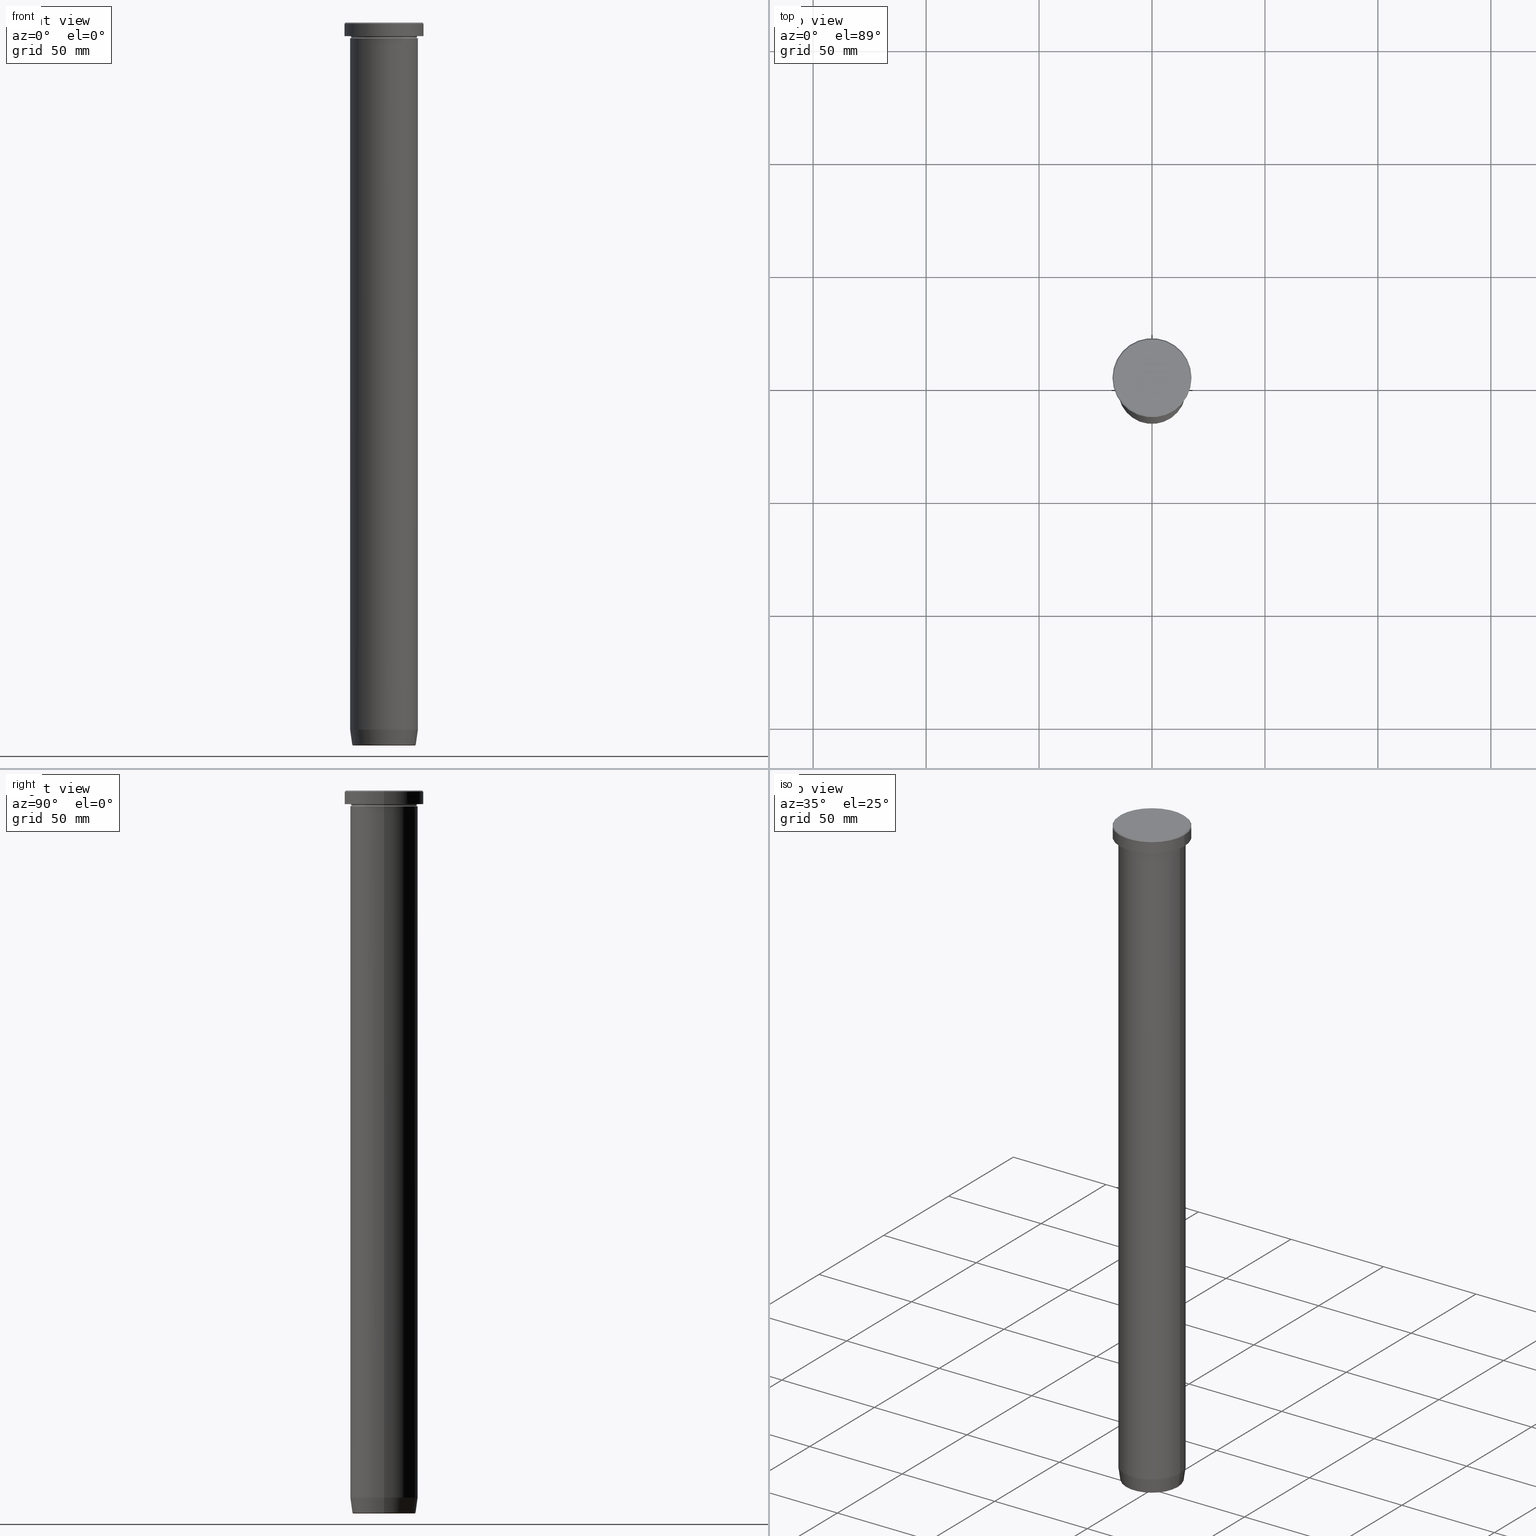
[diagram: canonical four-view strip — front | top / right | iso, engineering-drawing reading convention]
A machine part, canonical four-view strip (front | top / right | iso — engineering-drawing reading convention). The complete STEP part file that produces these views, byte-faithful:
ISO-10303-21;
HEADER;
FILE_DESCRIPTION (( 'STEP AP203' ),
    '1' );
FILE_NAME ('a3d0.STEP',
    '2024-01-02T17:49:03',
    ( '' ),
    ( '' ),
    'SwSTEP 2.0',
    'SolidWorks 2019',
    '' );
FILE_SCHEMA (( 'CONFIG_CONTROL_DESIGN' ));
ENDSEC;

DATA;
#1 = AXIS2_PLACEMENT_3D ( 'NONE', #470, #156, #508 ) ;
#2 = DIRECTION ( 'NONE',  ( -0.000000000000000000, -0.000000000000000000, 1.000000000000000000 ) ) ;
#3 = DIRECTION ( 'NONE',  ( -0.000000000000000000, -0.000000000000000000, 1.000000000000000000 ) ) ;
#4 = CARTESIAN_POINT ( 'NONE',  ( 0.000000000000000000, 0.000000000000000000, 0.000000000000000000 ) ) ;
#5 = ORIENTED_EDGE ( 'NONE', *, *, #241, .T. ) ;
#6 = AXIS2_PLACEMENT_3D ( 'NONE', #299, #26, #212 ) ;
#7 = FACE_OUTER_BOUND ( 'NONE', #569, .T. ) ;
#8 = EDGE_CURVE ( 'NONE', #490, #484, #77, .T. ) ;
#9 = CARTESIAN_POINT ( 'NONE',  ( 0.000000000000000000, 0.000000000000000000, -319.4999999999999432 ) ) ;
#10 = CIRCLE ( 'NONE', #355, 13.58157078817513508 ) ;
#11 = LOCAL_TIME ( 18, 49, 3.000000000000000000, #536 ) ;
#12 = DIRECTION ( 'NONE',  ( 1.000000000000000000, 0.000000000000000000, 0.000000000000000000 ) ) ;
#13 = CARTESIAN_POINT ( 'NONE',  ( 0.000000000000000000, 0.000000000000000000, -319.9999999999999432 ) ) ;
#14 = DIRECTION ( 'NONE',  ( -0.000000000000000000, -0.000000000000000000, 1.000000000000000000 ) ) ;
#15 = COORDINATED_UNIVERSAL_TIME_OFFSET ( 1, 0, .AHEAD. ) ;
#16 = ORIENTED_EDGE ( 'NONE', *, *, #41, .T. ) ;
#17 = PLANE ( 'NONE',  #36 ) ;
#18 = DIRECTION ( 'NONE',  ( -0.000000000000000000, -0.000000000000000000, 1.000000000000000000 ) ) ;
#19 = ORIENTED_EDGE ( 'NONE', *, *, #41, .F. ) ;
#20 = EDGE_CURVE ( 'NONE', #490, #341, #309, .T. ) ;
#21 = UNCERTAINTY_MEASURE_WITH_UNIT (LENGTH_MEASURE( 1.000000000000000082E-05 ), #457, 'distance_accuracy_value', 'NONE');
#22 = CARTESIAN_POINT ( 'NONE',  ( 0.000000000000000000, 0.000000000000000000, -319.4999999999999432 ) ) ;
#23 = CIRCLE ( 'NONE', #243, 15.00000000000000000 ) ;
#24 = AXIS2_PLACEMENT_3D ( 'NONE', #467, #427, #159 ) ;
#25 = DIRECTION ( 'NONE',  ( -0.000000000000000000, -0.000000000000000000, 1.000000000000000000 ) ) ;
#26 = DIRECTION ( 'NONE',  ( -0.000000000000000000, -0.000000000000000000, 1.000000000000000000 ) ) ;
#27 = CARTESIAN_POINT ( 'NONE',  ( 0.000000000000000000, 0.000000000000000000, 0.000000000000000000 ) ) ;
#28 = EDGE_CURVE ( 'NONE', #579, #341, #481, .T. ) ;
#29 = CARTESIAN_POINT ( 'NONE',  ( -13.58157078817513508, 1.693580934830242487E-15, -319.9999999999999432 ) ) ;
#30 = ORIENTED_EDGE ( 'NONE', *, *, #43, .T. ) ;
#31 = ORIENTED_EDGE ( 'NONE', *, *, #241, .F. ) ;
#32 = VERTEX_POINT ( 'NONE', #537 ) ;
#33 = DIRECTION ( 'NONE',  ( -1.000000000000000000, 0.000000000000000000, 0.000000000000000000 ) ) ;
#34 = ORIENTED_EDGE ( 'NONE', *, *, #387, .T. ) ;
#35 = CONICAL_SURFACE ( 'NONE', #109, 17.00000000000000000, 0.7853981633974415066 ) ;
#36 = AXIS2_PLACEMENT_3D ( 'NONE', #389, #132, #270 ) ;
#37 = APPLICATION_PROTOCOL_DEFINITION ( 'international standard', 'config_control_design', 1994, #75 ) ;
#38 = VERTEX_POINT ( 'NONE', #72 ) ;
#39 = CARTESIAN_POINT ( 'NONE',  ( 0.000000000000000000, 0.000000000000000000, -319.9999999999999432 ) ) ;
#40 = LINE ( 'NONE', #320, #163 ) ;
#41 = EDGE_CURVE ( 'NONE', #484, #490, #160, .T. ) ;
#42 = AXIS2_PLACEMENT_3D ( 'NONE', #81, #183, #271 ) ;
#43 = EDGE_CURVE ( 'NONE', #471, #236, #209, .T. ) ;
#44 = DATE_TIME_ROLE ( 'creation_date' ) ;
#45 = DIRECTION ( 'NONE',  ( 0.000000000000000000, 0.000000000000000000, -1.000000000000000000 ) ) ;
#46 = AXIS2_PLACEMENT_3D ( 'NONE', #121, #546, #127 ) ;
#47 = CIRCLE ( 'NONE', #393, 14.49999999999999822 ) ;
#48 = AXIS2_PLACEMENT_3D ( 'NONE', #462, #242, #554 ) ;
#49 = CARTESIAN_POINT ( 'NONE',  ( 0.000000000000000000, 2.939152317953646711E-14, -319.9999999999999432 ) ) ;
#50 = CARTESIAN_POINT ( 'NONE',  ( -14.07670482254592592, 1.780434674534163799E-15, -319.5695865504799826 ) ) ;
#51 = ORIENTED_EDGE ( 'NONE', *, *, #361, .F. ) ;
#52 = CARTESIAN_POINT ( 'NONE',  ( -14.01621415708325280, 1.716491180363582438E-15, -319.9999999999999432 ) ) ;
#53 = CARTESIAN_POINT ( 'NONE',  ( 14.07670482254592592, 0.000000000000000000, -319.5695865504799826 ) ) ;
#54 = ORIENTED_EDGE ( 'NONE', *, *, #599, .F. ) ;
#55 = DIRECTION ( 'NONE',  ( -0.000000000000000000, -0.000000000000000000, 1.000000000000000000 ) ) ;
#56 = CC_DESIGN_DATE_AND_TIME_ASSIGNMENT ( #493, #44, ( #168 ) ) ;
#57 = CYLINDRICAL_SURFACE ( 'NONE', #592, 17.50000000000000000 ) ;
#58 = ORIENTED_EDGE ( 'NONE', *, *, #8, .T. ) ;
#59 = AXIS2_PLACEMENT_3D ( 'NONE', #208, #165, #300 ) ;
#60 = ORGANIZATION ( 'NEUR�EN�', 'NEUR�EN�', '' ) ;
#61 = CARTESIAN_POINT ( 'NONE',  ( 0.000000000000000000, 0.000000000000000000, 0.000000000000000000 ) ) ;
#62 = EDGE_CURVE ( 'NONE', #476, #471, #449, .T. ) ;
#63 = ORIENTED_EDGE ( 'NONE', *, *, #419, .F. ) ;
#64 = CARTESIAN_POINT ( 'NONE',  ( -17.50000000000000000, 2.143131898507868248E-15, 0.000000000000000000 ) ) ;
#65 = CARTESIAN_POINT ( 'NONE',  ( 15.00000000000000000, 0.000000000000000000, 0.000000000000000000 ) ) ;
#66 = LOCAL_TIME ( 18, 49, 3.000000000000000000, #555 ) ;
#67 = ORIENTED_EDGE ( 'NONE', *, *, #43, .F. ) ;
#68 = ORIENTED_EDGE ( 'NONE', *, *, #224, .F. ) ;
#69 = CARTESIAN_POINT ( 'NONE',  ( -17.50000000000000000, 2.143131898507868248E-15, -5.999999999999999112 ) ) ;
#70 = EDGE_CURVE ( 'NONE', #32, #204, #597, .T. ) ;
#71 = ORIENTED_EDGE ( 'NONE', *, *, #497, .F. ) ;
#72 = CARTESIAN_POINT ( 'NONE',  ( -15.00000000000000000, 1.836970198721029589E-15, -6.999999999999999112 ) ) ;
#73 = PLANE ( 'NONE',  #384 ) ;
#74 = APPROVAL ( #88, 'NEUR�EN�' ) ;
#75 = APPLICATION_CONTEXT ( 'configuration controlled 3d designs of mechanical parts and assemblies' ) ;
#76 = DIRECTION ( 'NONE',  ( -0.000000000000000000, -0.000000000000000000, 1.000000000000000000 ) ) ;
#77 = CIRCLE ( 'NONE', #6, 17.00000000000000000 ) ;
#78 = ORIENTED_EDGE ( 'NONE', *, *, #219, .T. ) ;
#79 = VERTEX_POINT ( 'NONE', #92 ) ;
#80 = AXIS2_PLACEMENT_3D ( 'NONE', #358, #399, #538 ) ;
#81 = CARTESIAN_POINT ( 'NONE',  ( 0.000000000000000000, 0.000000000000000000, 0.000000000000000000 ) ) ;
#82 = AXIS2_PLACEMENT_3D ( 'NONE', #95, #234, #332 ) ;
#83 = CARTESIAN_POINT ( 'NONE',  ( 0.000000000000000000, 0.000000000000000000, -36.00000000000000000 ) ) ;
#84 = ADVANCED_FACE ( 'NONE', ( #191 ), #205, .F. ) ;
#85 = PERSON_AND_ORGANIZATION_ROLE ( 'creator' ) ;
#86 = VECTOR ( 'NONE', #494, 1000.000000000000000 ) ;
#87 = CIRCLE ( 'NONE', #319, 13.58157078817513508 ) ;
#88 = APPROVAL_STATUS ( 'not_yet_approved' ) ;
#89 = LOCAL_TIME ( 18, 49, 3.000000000000000000, #418 ) ;
#90 = EDGE_CURVE ( 'NONE', #442, #293, #87, .T. ) ;
#91 = PERSON_AND_ORGANIZATION_ROLE ( 'classification_officer' ) ;
#92 = CARTESIAN_POINT ( 'NONE',  ( 17.50000000000000000, 0.000000000000000000, -0.5000000000000073275 ) ) ;
#93 = DATE_AND_TIME ( #551, #89 ) ;
#94 = FACE_OUTER_BOUND ( 'NONE', #258, .T. ) ;
#95 = CARTESIAN_POINT ( 'NONE',  ( 13.58157078817513508, 0.000000000000000000, -319.4999999999999432 ) ) ;
#96 = EDGE_LOOP ( 'NONE', ( #19, #491, #221, #217 ) ) ;
#97 = CALENDAR_DATE ( 2024, 2, 1 ) ;
#98 = CIRCLE ( 'NONE', #59, 17.50000000000000000 ) ;
#99 = AXIS2_PLACEMENT_3D ( 'NONE', #192, #373, #561 ) ;
#100 = DIRECTION ( 'NONE',  ( 1.000000000000000000, 0.000000000000000000, 0.000000000000000000 ) ) ;
#101 = CARTESIAN_POINT ( 'NONE',  ( 15.00000000000000000, 0.000000000000000000, 0.000000000000000000 ) ) ;
#102 = ORIENTED_EDGE ( 'NONE', *, *, #407, .F. ) ;
#103 = ADVANCED_FACE ( 'NONE', ( #292 ), #57, .T. ) ;
#104 = DIRECTION ( 'NONE',  ( -1.000000000000000000, -1.224646799147349509E-16, 0.000000000000000000 ) ) ;
#105 = EDGE_LOOP ( 'NONE', ( #436, #390 ) ) ;
#106 = CARTESIAN_POINT ( 'NONE',  ( 0.000000000000000000, 0.000000000000000000, -5.999999999999999112 ) ) ;
#107 = CARTESIAN_POINT ( 'NONE',  ( 15.00000000000000000, 0.000000000000000000, -36.00000000000000000 ) ) ;
#108 = EDGE_CURVE ( 'NONE', #236, #166, #273, .T. ) ;
#109 = AXIS2_PLACEMENT_3D ( 'NONE', #27, #485, #302 ) ;
#110 = CARTESIAN_POINT ( 'NONE',  ( -15.00000000000000000, 1.836970198721029589E-15, -312.9999999999999432 ) ) ;
#111 = DIRECTION ( 'NONE',  ( 1.000000000000000000, 0.000000000000000000, 0.000000000000000000 ) ) ;
#112 = CARTESIAN_POINT ( 'NONE',  ( 0.000000000000000000, 0.000000000000000000, -319.5695865504799826 ) ) ;
#113 = EDGE_LOOP ( 'NONE', ( #522, #479, #433, #54 ) ) ;
#114 = DIRECTION ( 'NONE',  ( -0.000000000000000000, -0.000000000000000000, 1.000000000000000000 ) ) ;
#115 = MANIFOLD_SOLID_BREP ( 'Zkosen�1', #364 ) ;
#116 = PERSON_AND_ORGANIZATION ( #430, #60 ) ;
#117 = AXIS2_PLACEMENT_3D ( 'NONE', #39, #2, #142 ) ;
#118 = EDGE_LOOP ( 'NONE', ( #369, #34, #392, #541 ) ) ;
#119 = DIRECTION ( 'NONE',  ( 1.000000000000000000, 0.000000000000000000, 0.000000000000000000 ) ) ;
#120 = VERTEX_POINT ( 'NONE', #287 ) ;
#121 = CARTESIAN_POINT ( 'NONE',  ( 0.000000000000000000, 0.000000000000000000, -5.999999999999999112 ) ) ;
#122 = ORIENTED_EDGE ( 'NONE', *, *, #125, .T. ) ;
#123 = ORIENTED_EDGE ( 'NONE', *, *, #564, .F. ) ;
#124 = CARTESIAN_POINT ( 'NONE',  ( 0.000000000000000000, 0.000000000000000000, -36.00000000000000000 ) ) ;
#125 = EDGE_CURVE ( 'NONE', #421, #250, #23, .T. ) ;
#126 = TOROIDAL_SURFACE ( 'NONE', #486, 13.58157078817513508, 0.5000000000000000000 ) ;
#127 = DIRECTION ( 'NONE',  ( -1.000000000000000000, 0.000000000000000000, 0.000000000000000000 ) ) ;
#128 = CIRCLE ( 'NONE', #82, 0.5000000000000004441 ) ;
#129 = APPROVAL_DATE_TIME ( #223, #274 ) ;
#130 = MECHANICAL_CONTEXT ( 'NONE', #202, 'mechanical' ) ;
#131 = PERSON_AND_ORGANIZATION ( #430, #60 ) ;
#132 = DIRECTION ( 'NONE',  ( 0.000000000000000000, 0.000000000000000000, -1.000000000000000000 ) ) ;
#133 = EDGE_CURVE ( 'NONE', #476, #166, #247, .T. ) ;
#134 = DIRECTION ( 'NONE',  ( 0.000000000000000000, 0.000000000000000000, 1.000000000000000000 ) ) ;
#135 = TOROIDAL_SURFACE ( 'NONE', #266, 15.00000000000000000, 0.5000000000000000000 ) ;
#136 = TOROIDAL_SURFACE ( 'NONE', #99, 15.00000000000000000, 0.5000000000000000000 ) ;
#137 = CARTESIAN_POINT ( 'NONE',  ( 15.00000000000000000, 1.836970198721029589E-15, -6.499999999999999112 ) ) ;
#138 = FACE_OUTER_BOUND ( 'NONE', #574, .T. ) ;
#139 = DIRECTION ( 'NONE',  ( -0.000000000000000000, -0.000000000000000000, 1.000000000000000000 ) ) ;
#140 = LINE ( 'NONE', #328, #511 ) ;
#141 = DIRECTION ( 'NONE',  ( 1.000000000000000000, 0.000000000000000000, 0.000000000000000000 ) ) ;
#142 = DIRECTION ( 'NONE',  ( 1.000000000000000000, 0.000000000000000000, 0.000000000000000000 ) ) ;
#143 = DIRECTION ( 'NONE',  ( -1.224646799147353207E-16, 1.000000000000000000, 0.000000000000000000 ) ) ;
#144 = ORIENTED_EDGE ( 'NONE', *, *, #595, .F. ) ;
#145 = SHAPE_DEFINITION_REPRESENTATION ( #472, #228 ) ;
#146 = DIRECTION ( 'NONE',  ( 1.000000000000000000, 0.000000000000000000, 0.000000000000000000 ) ) ;
#147 = CARTESIAN_POINT ( 'NONE',  ( 0.000000000000000000, 0.000000000000000000, -36.00000000000000000 ) ) ;
#148 = DIRECTION ( 'NONE',  ( 1.224646799147353207E-16, 1.000000000000000000, 0.000000000000000000 ) ) ;
#149 = EDGE_LOOP ( 'NONE', ( #201, #78, #123, #578 ) ) ;
#150 = VERTEX_POINT ( 'NONE', #520 ) ;
#151 = CIRCLE ( 'NONE', #585, 15.00000000000000000 ) ;
#152 = CIRCLE ( 'NONE', #1, 0.5000000000000004441 ) ;
#153 = DIRECTION ( 'NONE',  ( 1.000000000000000000, 0.000000000000000000, 0.000000000000000000 ) ) ;
#154 = DIRECTION ( 'NONE',  ( 0.000000000000000000, 0.000000000000000000, -1.000000000000000000 ) ) ;
#155 = DIRECTION ( 'NONE',  ( 1.000000000000000000, 0.000000000000000000, 0.000000000000000000 ) ) ;
#156 = DIRECTION ( 'NONE',  ( 1.224646799147353207E-16, 1.000000000000000000, 0.000000000000000000 ) ) ;
#157 = ORIENTED_EDGE ( 'NONE', *, *, #497, .T. ) ;
#158 = ORIENTED_EDGE ( 'NONE', *, *, #185, .F. ) ;
#159 = DIRECTION ( 'NONE',  ( 1.000000000000000000, 0.000000000000000000, 0.000000000000000000 ) ) ;
#160 = CIRCLE ( 'NONE', #495, 17.00000000000000000 ) ;
#161 = ORIENTED_EDGE ( 'NONE', *, *, #407, .T. ) ;
#162 = ORIENTED_EDGE ( 'NONE', *, *, #487, .F. ) ;
#163 = VECTOR ( 'NONE', #406, 1000.000000000000000 ) ;
#164 = DIRECTION ( 'NONE',  ( -0.000000000000000000, -0.000000000000000000, 1.000000000000000000 ) ) ;
#165 = DIRECTION ( 'NONE',  ( 0.000000000000000000, 0.000000000000000000, -1.000000000000000000 ) ) ;
#166 = VERTEX_POINT ( 'NONE', #110 ) ;
#167 = CARTESIAN_POINT ( 'NONE',  ( 15.00000000000000000, 0.000000000000000000, -36.00000000000000000 ) ) ;
#168 = PRODUCT_DEFINITION ( 'NEZN�M�', '', #412, #385 ) ;
#169 = DIRECTION ( 'NONE',  ( -0.000000000000000000, -0.000000000000000000, 1.000000000000000000 ) ) ;
#170 = DIRECTION ( 'NONE',  ( 0.000000000000000000, 0.000000000000000000, -1.000000000000000000 ) ) ;
#171 = AXIS2_PLACEMENT_3D ( 'NONE', #124, #170, #542 ) ;
#172 = VECTOR ( 'NONE', #196, 1000.000000000000000 ) ;
#173 = VERTEX_POINT ( 'NONE', #107 ) ;
#174 = DIRECTION ( 'NONE',  ( -0.000000000000000000, -0.000000000000000000, 1.000000000000000000 ) ) ;
#175 = APPROVAL_DATE_TIME ( #263, #74 ) ;
#176 = CALENDAR_DATE ( 2024, 2, 1 ) ;
#177 = ORIENTED_EDGE ( 'NONE', *, *, #261, .T. ) ;
#178 = PLANE ( 'NONE',  #42 ) ;
#179 = EDGE_CURVE ( 'NONE', #250, #421, #403, .T. ) ;
#180 = FACE_OUTER_BOUND ( 'NONE', #118, .T. ) ;
#181 = COORDINATED_UNIVERSAL_TIME_OFFSET ( 1, 0, .AHEAD. ) ;
#182 = DIRECTION ( 'NONE',  ( -0.000000000000000000, -0.000000000000000000, 1.000000000000000000 ) ) ;
#183 = DIRECTION ( 'NONE',  ( 0.000000000000000000, -0.000000000000000000, 1.000000000000000000 ) ) ;
#184 = APPLICATION_PROTOCOL_DEFINITION ( 'international standard', 'config_control_design', 1994, #202 ) ;
#185 = EDGE_CURVE ( 'NONE', #166, #312, #200, .T. ) ;
#186 = CYLINDRICAL_SURFACE ( 'NONE', #198, 17.50000000000000000 ) ;
#187 = DIRECTION ( 'NONE',  ( 1.000000000000000000, 0.000000000000000000, 0.000000000000000000 ) ) ;
#188 = FACE_OUTER_BOUND ( 'NONE', #113, .T. ) ;
#189 = CIRCLE ( 'NONE', #303, 14.49999999999999822 ) ;
#190 = TOROIDAL_SURFACE ( 'NONE', #540, 15.00000000000000000, 0.5000000000000000000 ) ;
#191 = FACE_OUTER_BOUND ( 'NONE', #583, .T. ) ;
#192 = CARTESIAN_POINT ( 'NONE',  ( 0.000000000000000000, 0.000000000000000000, -6.499999999999999112 ) ) ;
#193 = ORIENTED_EDGE ( 'NONE', *, *, #185, .T. ) ;
#194 = APPROVAL_DATE_TIME ( #277, #514 ) ;
#195 = ADVANCED_FACE ( 'NONE', ( #474 ), #206, .T. ) ;
#196 = DIRECTION ( 'NONE',  ( -0.000000000000000000, -0.000000000000000000, 1.000000000000000000 ) ) ;
#197 = ORIENTED_EDGE ( 'NONE', *, *, #28, .T. ) ;
#198 = AXIS2_PLACEMENT_3D ( 'NONE', #550, #251, #290 ) ;
#199 = LOCAL_TIME ( 18, 49, 3.000000000000000000, #181 ) ;
#200 = LINE ( 'NONE', #376, #321 ) ;
#201 = ORIENTED_EDGE ( 'NONE', *, *, #179, .T. ) ;
#202 = APPLICATION_CONTEXT ( 'configuration controlled 3d designs of mechanical parts and assemblies' ) ;
#203 = CALENDAR_DATE ( 2024, 2, 1 ) ;
#204 = VERTEX_POINT ( 'NONE', #326 ) ;
#205 = TOROIDAL_SURFACE ( 'NONE', #560, 15.00000000000000000, 0.5000000000000000000 ) ;
#206 = CYLINDRICAL_SURFACE ( 'NONE', #437, 15.00000000000000000 ) ;
#207 =( GEOMETRIC_REPRESENTATION_CONTEXT ( 3 ) GLOBAL_UNCERTAINTY_ASSIGNED_CONTEXT ( ( #21 ) ) GLOBAL_UNIT_ASSIGNED_CONTEXT ( ( #457, #278, #507 ) ) REPRESENTATION_CONTEXT ( 'NONE', 'WORKASPACE' ) );
#208 = CARTESIAN_POINT ( 'NONE',  ( 0.000000000000000000, 0.000000000000000000, -0.5000000000000073275 ) ) ;
#209 = LINE ( 'NONE', #359, #365 ) ;
#210 = ADVANCED_FACE ( 'NONE', ( #94 ), #284, .F. ) ;
#211 = DIRECTION ( 'NONE',  ( 1.000000000000000000, 0.000000000000000000, 0.000000000000000000 ) ) ;
#212 = DIRECTION ( 'NONE',  ( 1.000000000000000000, 0.000000000000000000, 0.000000000000000000 ) ) ;
#213 = ORIENTED_EDGE ( 'NONE', *, *, #179, .F. ) ;
#214 = DIRECTION ( 'NONE',  ( -1.000000000000000000, 0.000000000000000000, -0.000000000000000000 ) ) ;
#215 = DIRECTION ( 'NONE',  ( 1.000000000000000000, 0.000000000000000000, 0.000000000000000000 ) ) ;
#216 = VECTOR ( 'NONE', #529, 1000.000000000000000 ) ;
#217 = ORIENTED_EDGE ( 'NONE', *, *, #20, .F. ) ;
#218 = CARTESIAN_POINT ( 'NONE',  ( -15.00000000000000000, 0.000000000000000000, -6.499999999999999112 ) ) ;
#219 = EDGE_CURVE ( 'NONE', #421, #38, #257, .T. ) ;
#220 = DIRECTION ( 'NONE',  ( 0.7071067811865426878, 8.659560562354874926E-17, -0.7071067811865524577 ) ) ;
#221 = ORIENTED_EDGE ( 'NONE', *, *, #282, .F. ) ;
#222 = APPROVAL_STATUS ( 'not_yet_approved' ) ;
#223 = DATE_AND_TIME ( #360, #199 ) ;
#224 = EDGE_CURVE ( 'NONE', #471, #476, #573, .T. ) ;
#225 = DIRECTION ( 'NONE',  ( 0.000000000000000000, 0.000000000000000000, -1.000000000000000000 ) ) ;
#226 = CC_DESIGN_PERSON_AND_ORGANIZATION_ASSIGNMENT ( #267, #502, ( #412 ) ) ;
#227 = DATE_TIME_ROLE ( 'classification_date' ) ;
#228 = ADVANCED_BREP_SHAPE_REPRESENTATION ( 'a3d0', ( #115, #318, #512 ), #207 ) ;
#229 = DIRECTION ( 'NONE',  ( -1.000000000000000000, 0.000000000000000000, 0.000000000000000000 ) ) ;
#230 = CARTESIAN_POINT ( 'NONE',  ( 0.000000000000000000, 0.000000000000000000, -319.9999999999999432 ) ) ;
#231 = EDGE_CURVE ( 'NONE', #38, #120, #151, .T. ) ;
#232 = AXIS2_PLACEMENT_3D ( 'NONE', #83, #182, #451 ) ;
#233 = DIRECTION ( 'NONE',  ( -0.000000000000000000, -0.000000000000000000, 1.000000000000000000 ) ) ;
#234 = DIRECTION ( 'NONE',  ( 0.000000000000000000, -1.000000000000000000, 0.000000000000000000 ) ) ;
#235 = EDGE_LOOP ( 'NONE', ( #5, #260, #63, #477 ) ) ;
#236 = VERTEX_POINT ( 'NONE', #249 ) ;
#237 = CARTESIAN_POINT ( 'NONE',  ( 0.000000000000000000, 0.000000000000000000, -36.00000000000000000 ) ) ;
#238 = DIRECTION ( 'NONE',  ( 1.000000000000000000, 0.000000000000000000, 0.000000000000000000 ) ) ;
#239 = DIRECTION ( 'NONE',  ( 1.000000000000000000, 0.000000000000000000, 0.000000000000000000 ) ) ;
#240 = CYLINDRICAL_SURFACE ( 'NONE', #48, 15.00000000000000000 ) ;
#241 = EDGE_CURVE ( 'NONE', #32, #150, #189, .T. ) ;
#242 = DIRECTION ( 'NONE',  ( -0.000000000000000000, -0.000000000000000000, 1.000000000000000000 ) ) ;
#243 = AXIS2_PLACEMENT_3D ( 'NONE', #147, #526, #153 ) ;
#244 = CONICAL_SURFACE ( 'NONE', #346, 17.00000000000000000, 0.7853981633974415066 ) ;
#245 = DIRECTION ( 'NONE',  ( -0.000000000000000000, -0.000000000000000000, 1.000000000000000000 ) ) ;
#246 = CARTESIAN_POINT ( 'NONE',  ( 17.50000000000000000, 0.000000000000000000, -5.999999999999999112 ) ) ;
#247 = LINE ( 'NONE', #52, #463 ) ;
#248 = ORIENTED_EDGE ( 'NONE', *, *, #519, .T. ) ;
#249 = CARTESIAN_POINT ( 'NONE',  ( 15.00000000000000000, 0.000000000000000000, -312.9999999999999432 ) ) ;
#250 = VERTEX_POINT ( 'NONE', #167 ) ;
#251 = DIRECTION ( 'NONE',  ( -0.000000000000000000, -0.000000000000000000, 1.000000000000000000 ) ) ;
#252 = ADVANCED_FACE ( 'NONE', ( #435 ), #126, .T. ) ;
#253 = CARTESIAN_POINT ( 'NONE',  ( 0.000000000000000000, 0.000000000000000000, -6.499999999999999112 ) ) ;
#254 = ORIENTED_EDGE ( 'NONE', *, *, #62, .T. ) ;
#255 = FACE_OUTER_BOUND ( 'NONE', #256, .T. ) ;
#256 = EDGE_LOOP ( 'NONE', ( #213, #562 ) ) ;
#257 = LINE ( 'NONE', #450, #216 ) ;
#258 = EDGE_LOOP ( 'NONE', ( #441, #588 ) ) ;
#259 = CARTESIAN_POINT ( 'NONE',  ( 0.000000000000000000, 17.50000000000000000, -5.999999999999999112 ) ) ;
#260 = ORIENTED_EDGE ( 'NONE', *, *, #487, .T. ) ;
#261 = EDGE_CURVE ( 'NONE', #236, #173, #582, .T. ) ;
#262 = AXIS2_PLACEMENT_3D ( 'NONE', #545, #264, #455 ) ;
#263 = DATE_AND_TIME ( #203, #404 ) ;
#264 = DIRECTION ( 'NONE',  ( -0.000000000000000000, -0.000000000000000000, 1.000000000000000000 ) ) ;
#265 = CARTESIAN_POINT ( 'NONE',  ( -15.00000000000000000, 1.836970198721029589E-15, -36.00000000000000000 ) ) ;
#266 = AXIS2_PLACEMENT_3D ( 'NONE', #283, #233, #239 ) ;
#267 = PERSON_AND_ORGANIZATION ( #430, #60 ) ;
#268 = CONICAL_SURFACE ( 'NONE', #394, 14.01621415708325280, 0.1396263401595470577 ) ;
#269 = DIRECTION ( 'NONE',  ( 1.000000000000000000, 0.000000000000000000, 0.000000000000000000 ) ) ;
#270 = DIRECTION ( 'NONE',  ( -1.000000000000000000, 0.000000000000000000, -0.000000000000000000 ) ) ;
#271 = DIRECTION ( 'NONE',  ( 1.000000000000000000, 0.000000000000000000, 0.000000000000000000 ) ) ;
#272 = DIRECTION ( 'NONE',  ( 0.000000000000000000, 0.000000000000000000, -1.000000000000000000 ) ) ;
#273 = CIRCLE ( 'NONE', #593, 15.00000000000000000 ) ;
#274 = APPROVAL ( #222, 'NEUR�EN�' ) ;
#275 = AXIS2_PLACEMENT_3D ( 'NONE', #9, #164, #566 ) ;
#276 = APPROVAL_PERSON_ORGANIZATION ( #314, #274, #400 ) ;
#277 = DATE_AND_TIME ( #97, #66 ) ;
#278 =( NAMED_UNIT ( * ) PLANE_ANGLE_UNIT ( ) SI_UNIT ( $, .RADIAN. ) );
#279 = DIRECTION ( 'NONE',  ( 1.000000000000000000, 0.000000000000000000, 0.000000000000000000 ) ) ;
#280 = DIRECTION ( 'NONE',  ( 0.000000000000000000, 0.000000000000000000, -1.000000000000000000 ) ) ;
#281 = APPROVAL_ROLE ( '' ) ;
#282 = EDGE_CURVE ( 'NONE', #341, #79, #98, .T. ) ;
#283 = CARTESIAN_POINT ( 'NONE',  ( 0.000000000000000000, 0.000000000000000000, -6.499999999999999112 ) ) ;
#284 = PLANE ( 'NONE',  #367 ) ;
#285 = DIRECTION ( 'NONE',  ( -0.000000000000000000, -0.000000000000000000, 1.000000000000000000 ) ) ;
#286 = AXIS2_PLACEMENT_3D ( 'NONE', #339, #521, #280 ) ;
#287 = CARTESIAN_POINT ( 'NONE',  ( 15.00000000000000000, 0.000000000000000000, -6.999999999999999112 ) ) ;
#288 = DIRECTION ( 'NONE',  ( -1.000000000000000000, 1.224646799147353454E-16, 0.000000000000000000 ) ) ;
#289 = ORIENTED_EDGE ( 'NONE', *, *, #291, .T. ) ;
#290 = DIRECTION ( 'NONE',  ( 1.000000000000000000, 0.000000000000000000, 0.000000000000000000 ) ) ;
#291 = EDGE_CURVE ( 'NONE', #150, #32, #47, .T. ) ;
#292 = FACE_OUTER_BOUND ( 'NONE', #518, .T. ) ;
#293 = VERTEX_POINT ( 'NONE', #29 ) ;
#294 = AXIS2_PLACEMENT_3D ( 'NONE', #61, #139, #146 ) ;
#295 = ORIENTED_EDGE ( 'NONE', *, *, #231, .F. ) ;
#296 = FACE_OUTER_BOUND ( 'NONE', #499, .T. ) ;
#297 = DIRECTION ( 'NONE',  ( -0.000000000000000000, -0.000000000000000000, 1.000000000000000000 ) ) ;
#298 = EDGE_CURVE ( 'NONE', #378, #204, #374, .T. ) ;
#299 = CARTESIAN_POINT ( 'NONE',  ( 0.000000000000000000, 0.000000000000000000, 0.000000000000000000 ) ) ;
#300 = DIRECTION ( 'NONE',  ( 1.000000000000000000, 0.000000000000000000, 0.000000000000000000 ) ) ;
#301 = ORIENTED_EDGE ( 'NONE', *, *, #108, .T. ) ;
#302 = DIRECTION ( 'NONE',  ( -1.000000000000000000, 0.000000000000000000, 0.000000000000000000 ) ) ;
#303 = AXIS2_PLACEMENT_3D ( 'NONE', #535, #114, #489 ) ;
#304 = EDGE_LOOP ( 'NONE', ( #565, #422, #382, #67 ) ) ;
#305 = FACE_BOUND ( 'NONE', #340, .T. ) ;
#306 = FACE_OUTER_BOUND ( 'NONE', #468, .T. ) ;
#307 = ADVANCED_FACE ( 'NONE', ( #138 ), #135, .F. ) ;
#308 = PERSON_AND_ORGANIZATION ( #430, #60 ) ;
#309 = LINE ( 'NONE', #590, #86 ) ;
#310 = CC_DESIGN_PERSON_AND_ORGANIZATION_ASSIGNMENT ( #308, #85, ( #168 ) ) ;
#311 = EDGE_LOOP ( 'NONE', ( #158, #157, #177, #558 ) ) ;
#312 = VERTEX_POINT ( 'NONE', #324 ) ;
#313 = CARTESIAN_POINT ( 'NONE',  ( 0.000000000000000000, 0.000000000000000000, -36.00000000000000000 ) ) ;
#314 = PERSON_AND_ORGANIZATION ( #430, #60 ) ;
#315 = CIRCLE ( 'NONE', #586, 17.50000000000000000 ) ;
#316 = FACE_OUTER_BOUND ( 'NONE', #304, .T. ) ;
#317 = EDGE_CURVE ( 'NONE', #484, #79, #140, .T. ) ;
#318 = MANIFOLD_SOLID_BREP ( 'Zaoblit4', #402 ) ;
#319 = AXIS2_PLACEMENT_3D ( 'NONE', #230, #225, #279 ) ;
#320 = CARTESIAN_POINT ( 'NONE',  ( 17.50000000000000000, 0.000000000000000000, 0.000000000000000000 ) ) ;
#321 = VECTOR ( 'NONE', #18, 1000.000000000000000 ) ;
#322 = CIRCLE ( 'NONE', #547, 0.5000000000000004441 ) ;
#323 = ADVANCED_FACE ( 'NONE', ( #306 ), #178, .T. ) ;
#324 = CARTESIAN_POINT ( 'NONE',  ( -15.00000000000000000, 1.836970198721029589E-15, -36.00000000000000000 ) ) ;
#325 = PRODUCT_RELATED_PRODUCT_CATEGORY ( 'detail', '', ( #571 ) ) ;
#326 = CARTESIAN_POINT ( 'NONE',  ( -15.00000000000000000, 0.000000000000000000, -5.999999999999998224 ) ) ;
#327 = ORIENTED_EDGE ( 'NONE', *, *, #133, .F. ) ;
#328 = CARTESIAN_POINT ( 'NONE',  ( 17.00000000000000000, 2.081899558550500280E-15, 0.000000000000000000 ) ) ;
#329 = DIRECTION ( 'NONE',  ( 1.000000000000000000, 0.000000000000000000, 0.000000000000000000 ) ) ;
#330 = DIRECTION ( 'NONE',  ( 0.000000000000000000, -0.000000000000000000, 1.000000000000000000 ) ) ;
#331 = ADVANCED_FACE ( 'NONE', ( #180 ), #186, .T. ) ;
#332 = DIRECTION ( 'NONE',  ( 0.000000000000000000, 0.000000000000000000, -1.000000000000000000 ) ) ;
#333 = ORIENTED_EDGE ( 'NONE', *, *, #466, .T. ) ;
#334 = ORIENTED_EDGE ( 'NONE', *, *, #519, .F. ) ;
#335 = APPROVAL_PERSON_ORGANIZATION ( #504, #514, #281 ) ;
#336 = DIRECTION ( 'NONE',  ( -0.1391731009600661317, 1.704378926181564302E-17, 0.9902680687415702510 ) ) ;
#337 = ORIENTED_EDGE ( 'NONE', *, *, #70, .T. ) ;
#338 = CC_DESIGN_DATE_AND_TIME_ASSIGNMENT ( #93, #227, ( #594 ) ) ;
#339 = CARTESIAN_POINT ( 'NONE',  ( 15.00000000000000000, 0.000000000000000000, -6.499999999999999112 ) ) ;
#340 = EDGE_LOOP ( 'NONE', ( #416, #530 ) ) ;
#341 = VERTEX_POINT ( 'NONE', #380 ) ;
#342 = FACE_OUTER_BOUND ( 'NONE', #480, .T. ) ;
#343 = AXIS2_PLACEMENT_3D ( 'NONE', #218, #351, #533 ) ;
#344 = VERTEX_POINT ( 'NONE', #246 ) ;
#345 = AXIS2_PLACEMENT_3D ( 'NONE', #313, #174, #591 ) ;
#346 = AXIS2_PLACEMENT_3D ( 'NONE', #4, #45, #368 ) ;
#347 = EDGE_CURVE ( 'NONE', #344, #579, #459, .T. ) ;
#348 = EDGE_LOOP ( 'NONE', ( #161, #417 ) ) ;
#349 = PERSON_AND_ORGANIZATION_ROLE ( 'creator' ) ;
#350 = EDGE_LOOP ( 'NONE', ( #327, #254, #30, #71 ) ) ;
#351 = DIRECTION ( 'NONE',  ( -0.000000000000000000, -1.000000000000000000, -0.000000000000000000 ) ) ;
#352 = DIRECTION ( 'NONE',  ( -0.000000000000000000, -0.000000000000000000, 1.000000000000000000 ) ) ;
#353 = ORIENTED_EDGE ( 'NONE', *, *, #503, .T. ) ;
#354 = ADVANCED_FACE ( 'NONE', ( #296 ), #552, .T. ) ;
#355 = AXIS2_PLACEMENT_3D ( 'NONE', #434, #154, #119 ) ;
#356 = CIRCLE ( 'NONE', #505, 15.00000000000000000 ) ;
#357 = CARTESIAN_POINT ( 'NONE',  ( 0.000000000000000000, 0.000000000000000000, 0.000000000000000000 ) ) ;
#358 = CARTESIAN_POINT ( 'NONE',  ( 0.000000000000000000, 0.000000000000000000, -5.999999999999999112 ) ) ;
#359 = CARTESIAN_POINT ( 'NONE',  ( 14.01621415708325280, 0.000000000000000000, -319.9999999999999432 ) ) ;
#360 = CALENDAR_DATE ( 2024, 2, 1 ) ;
#361 = EDGE_CURVE ( 'NONE', #293, #442, #10, .T. ) ;
#362 = DIRECTION ( 'NONE',  ( 0.000000000000000000, 0.000000000000000000, -1.000000000000000000 ) ) ;
#363 = CARTESIAN_POINT ( 'NONE',  ( 0.000000000000000000, 0.000000000000000000, -0.5000000000000073275 ) ) ;
#364 = CLOSED_SHELL ( 'NONE', ( #366, #548, #307, #509, #103, #584, #323, #331, #401, #577, #456, #84, #532 ) ) ;
#365 = VECTOR ( 'NONE', #446, 1000.000000000000000 ) ;
#366 = ADVANCED_FACE ( 'NONE', ( #443 ), #35, .T. ) ;
#367 = AXIS2_PLACEMENT_3D ( 'NONE', #49, #330, #414 ) ;
#368 = DIRECTION ( 'NONE',  ( -1.000000000000000000, 0.000000000000000000, 0.000000000000000000 ) ) ;
#369 = ORIENTED_EDGE ( 'NONE', *, *, #28, .F. ) ;
#370 = APPROVAL_STATUS ( 'not_yet_approved' ) ;
#371 = FACE_OUTER_BOUND ( 'NONE', #350, .T. ) ;
#372 = DIRECTION ( 'NONE',  ( -0.000000000000000000, -0.000000000000000000, 1.000000000000000000 ) ) ;
#373 = DIRECTION ( 'NONE',  ( 0.000000000000000000, 0.000000000000000000, -1.000000000000000000 ) ) ;
#374 = CIRCLE ( 'NONE', #423, 15.00000000000000000 ) ;
#375 = EDGE_LOOP ( 'NONE', ( #51, #397, #68, #516 ) ) ;
#376 = CARTESIAN_POINT ( 'NONE',  ( -15.00000000000000000, 1.836970198721029589E-15, 0.000000000000000000 ) ) ;
#377 = FACE_OUTER_BOUND ( 'NONE', #149, .T. ) ;
#378 = VERTEX_POINT ( 'NONE', #589 ) ;
#379 = ORIENTED_EDGE ( 'NONE', *, *, #291, .F. ) ;
#380 = CARTESIAN_POINT ( 'NONE',  ( -17.50000000000000000, 2.143131898507868248E-15, -0.5000000000000073275 ) ) ;
#381 = ADVANCED_FACE ( 'NONE', ( #544 ), #581, .F. ) ;
#382 = ORIENTED_EDGE ( 'NONE', *, *, #108, .F. ) ;
#383 = VECTOR ( 'NONE', #483, 1000.000000000000000 ) ;
#384 = AXIS2_PLACEMENT_3D ( 'NONE', #259, #447, #214 ) ;
#385 = DESIGN_CONTEXT ( 'detailed design', #75, 'design' ) ;
#386 = CIRCLE ( 'NONE', #24, 15.00000000000000000 ) ;
#387 = EDGE_CURVE ( 'NONE', #579, #344, #453, .T. ) ;
#388 = ORIENTED_EDGE ( 'NONE', *, *, #219, .F. ) ;
#389 = CARTESIAN_POINT ( 'NONE',  ( 0.000000000000000000, 15.00000000000000000, -36.00000000000000000 ) ) ;
#390 = ORIENTED_EDGE ( 'NONE', *, *, #387, .F. ) ;
#391 = ORIENTED_EDGE ( 'NONE', *, *, #90, .F. ) ;
#392 = ORIENTED_EDGE ( 'NONE', *, *, #595, .T. ) ;
#393 = AXIS2_PLACEMENT_3D ( 'NONE', #253, #25, #211 ) ;
#394 = AXIS2_PLACEMENT_3D ( 'NONE', #13, #285, #410 ) ;
#395 = DIRECTION ( 'NONE',  ( 1.000000000000000000, 0.000000000000000000, 0.000000000000000000 ) ) ;
#396 = ORIENTED_EDGE ( 'NONE', *, *, #261, .F. ) ;
#397 = ORIENTED_EDGE ( 'NONE', *, *, #556, .T. ) ;
#398 = ORIENTED_EDGE ( 'NONE', *, *, #282, .T. ) ;
#399 = DIRECTION ( 'NONE',  ( -0.000000000000000000, -0.000000000000000000, 1.000000000000000000 ) ) ;
#400 = APPROVAL_ROLE ( '' ) ;
#401 = ADVANCED_FACE ( 'NONE', ( #305, #492 ), #73, .T. ) ;
#402 = CLOSED_SHELL ( 'NONE', ( #252, #439, #458, #381, #195, #473, #210, #354 ) ) ;
#403 = CIRCLE ( 'NONE', #475, 15.00000000000000000 ) ;
#404 = LOCAL_TIME ( 18, 49, 3.000000000000000000, #15 ) ;
#405 = CARTESIAN_POINT ( 'NONE',  ( 0.000000000000000000, 0.000000000000000000, -6.499999999999999112 ) ) ;
#406 = DIRECTION ( 'NONE',  ( -0.000000000000000000, -0.000000000000000000, 1.000000000000000000 ) ) ;
#407 = EDGE_CURVE ( 'NONE', #173, #312, #527, .T. ) ;
#408 = PERSON_AND_ORGANIZATION ( #430, #60 ) ;
#409 = VECTOR ( 'NONE', #169, 1000.000000000000000 ) ;
#410 = DIRECTION ( 'NONE',  ( 1.000000000000000000, 0.000000000000000000, 0.000000000000000000 ) ) ;
#411 = CIRCLE ( 'NONE', #46, 15.00000000000000000 ) ;
#412 = PRODUCT_DEFINITION_FORMATION_WITH_SPECIFIED_SOURCE ( 'LIBOVOLN�', '', #571, .NOT_KNOWN. ) ;
#413 = CARTESIAN_POINT ( 'NONE',  ( -13.58157078817513508, 1.663262719313187360E-15, -319.4999999999999432 ) ) ;
#414 = DIRECTION ( 'NONE',  ( 1.000000000000000000, 0.000000000000000000, 0.000000000000000000 ) ) ;
#415 = CARTESIAN_POINT ( 'NONE',  ( -17.00000000000000000, 0.000000000000000000, 0.000000000000000000 ) ) ;
#416 = ORIENTED_EDGE ( 'NONE', *, *, #419, .T. ) ;
#417 = ORIENTED_EDGE ( 'NONE', *, *, #428, .T. ) ;
#418 = COORDINATED_UNIVERSAL_TIME_OFFSET ( 1, 0, .AHEAD. ) ;
#419 = EDGE_CURVE ( 'NONE', #204, #378, #411, .T. ) ;
#420 = CYLINDRICAL_SURFACE ( 'NONE', #528, 15.00000000000000000 ) ;
#421 = VERTEX_POINT ( 'NONE', #265 ) ;
#422 = ORIENTED_EDGE ( 'NONE', *, *, #133, .T. ) ;
#423 = AXIS2_PLACEMENT_3D ( 'NONE', #587, #572, #229 ) ;
#424 = CARTESIAN_POINT ( 'NONE',  ( 0.000000000000000000, 0.000000000000000000, 0.000000000000000000 ) ) ;
#425 = ORIENTED_EDGE ( 'NONE', *, *, #62, .F. ) ;
#426 = CC_DESIGN_SECURITY_CLASSIFICATION ( #594, ( #412 ) ) ;
#427 = DIRECTION ( 'NONE',  ( -0.000000000000000000, -0.000000000000000000, 1.000000000000000000 ) ) ;
#428 = EDGE_CURVE ( 'NONE', #312, #173, #500, .T. ) ;
#429 = EDGE_LOOP ( 'NONE', ( #568, #379, #248, #580 ) ) ;
#430 = PERSON ( 'NEUR�EN�', 'NEUR�EN�', 'NEUR�EN�', ('NEUR�EN�'), ('NEUR�EN�'), ('NEUR�EN�') ) ;
#431 = DIRECTION ( 'NONE',  ( -0.000000000000000000, -0.000000000000000000, 1.000000000000000000 ) ) ;
#432 = ORIENTED_EDGE ( 'NONE', *, *, #231, .T. ) ;
#433 = ORIENTED_EDGE ( 'NONE', *, *, #20, .T. ) ;
#434 = CARTESIAN_POINT ( 'NONE',  ( 0.000000000000000000, 0.000000000000000000, -319.9999999999999432 ) ) ;
#435 = FACE_OUTER_BOUND ( 'NONE', #375, .T. ) ;
#436 = ORIENTED_EDGE ( 'NONE', *, *, #347, .F. ) ;
#437 = AXIS2_PLACEMENT_3D ( 'NONE', #557, #245, #141 ) ;
#438 = CARTESIAN_POINT ( 'NONE',  ( 0.000000000000000000, 0.000000000000000000, 0.000000000000000000 ) ) ;
#439 = ADVANCED_FACE ( 'NONE', ( #316 ), #464, .T. ) ;
#440 = DIRECTION ( 'NONE',  ( -0.000000000000000000, -0.000000000000000000, 1.000000000000000000 ) ) ;
#441 = ORIENTED_EDGE ( 'NONE', *, *, #90, .T. ) ;
#442 = VERTEX_POINT ( 'NONE', #559 ) ;
#443 = FACE_OUTER_BOUND ( 'NONE', #96, .T. ) ;
#444 = CARTESIAN_POINT ( 'NONE',  ( 0.000000000000000000, 0.000000000000000000, -6.999999999999999112 ) ) ;
#445 = ORIENTED_EDGE ( 'NONE', *, *, #298, .F. ) ;
#446 = DIRECTION ( 'NONE',  ( 0.1391731009600661317, 0.000000000000000000, 0.9902680687415702510 ) ) ;
#447 = DIRECTION ( 'NONE',  ( 0.000000000000000000, 0.000000000000000000, -1.000000000000000000 ) ) ;
#448 = ORIENTED_EDGE ( 'NONE', *, *, #347, .T. ) ;
#449 = CIRCLE ( 'NONE', #262, 14.07670482254592592 ) ;
#450 = CARTESIAN_POINT ( 'NONE',  ( -15.00000000000000000, 1.836970198721029589E-15, 0.000000000000000000 ) ) ;
#451 = DIRECTION ( 'NONE',  ( 1.000000000000000000, 0.000000000000000000, 0.000000000000000000 ) ) ;
#452 = PERSON_AND_ORGANIZATION_ROLE ( 'design_owner' ) ;
#453 = CIRCLE ( 'NONE', #80, 17.50000000000000000 ) ;
#454 = CC_DESIGN_APPROVAL ( #274, ( #168 ) ) ;
#455 = DIRECTION ( 'NONE',  ( -1.000000000000000000, 0.000000000000000000, 0.000000000000000000 ) ) ;
#456 = ADVANCED_FACE ( 'NONE', ( #534 ), #190, .F. ) ;
#457 =( LENGTH_UNIT ( ) NAMED_UNIT ( * ) SI_UNIT ( .MILLI., .METRE. ) );
#458 = ADVANCED_FACE ( 'NONE', ( #7 ), #240, .T. ) ;
#459 = CIRCLE ( 'NONE', #539, 17.50000000000000000 ) ;
#460 = APPROVAL_PERSON_ORGANIZATION ( #131, #74, #596 ) ;
#461 = LINE ( 'NONE', #101, #172 ) ;
#462 = CARTESIAN_POINT ( 'NONE',  ( 0.000000000000000000, 0.000000000000000000, 0.000000000000000000 ) ) ;
#463 = VECTOR ( 'NONE', #336, 1000.000000000000000 ) ;
#464 = CONICAL_SURFACE ( 'NONE', #117, 14.01621415708325280, 0.1396263401595470577 ) ;
#465 = CARTESIAN_POINT ( 'NONE',  ( 0.000000000000000000, 0.000000000000000000, -312.9999999999999432 ) ) ;
#466 = EDGE_CURVE ( 'NONE', #442, #471, #128, .T. ) ;
#467 = CARTESIAN_POINT ( 'NONE',  ( 0.000000000000000000, 0.000000000000000000, -6.999999999999999112 ) ) ;
#468 = EDGE_LOOP ( 'NONE', ( #58, #16 ) ) ;
#469 = DIRECTION ( 'NONE',  ( 1.000000000000000000, 0.000000000000000000, 0.000000000000000000 ) ) ;
#470 = CARTESIAN_POINT ( 'NONE',  ( -15.00000000000000000, 1.836970198721029589E-15, -6.499999999999999112 ) ) ;
#471 = VERTEX_POINT ( 'NONE', #53 ) ;
#472 = PRODUCT_DEFINITION_SHAPE ( 'NONE', 'NONE',  #168 ) ;
#473 = ADVANCED_FACE ( 'NONE', ( #371 ), #268, .T. ) ;
#474 = FACE_OUTER_BOUND ( 'NONE', #311, .T. ) ;
#475 = AXIS2_PLACEMENT_3D ( 'NONE', #237, #431, #469 ) ;
#476 = VERTEX_POINT ( 'NONE', #50 ) ;
#477 = ORIENTED_EDGE ( 'NONE', *, *, #70, .F. ) ;
#478 = AXIS2_PLACEMENT_3D ( 'NONE', #413, #148, #288 ) ;
#479 = ORIENTED_EDGE ( 'NONE', *, *, #8, .F. ) ;
#480 = EDGE_LOOP ( 'NONE', ( #388, #122, #523, #295 ) ) ;
#481 = LINE ( 'NONE', #64, #409 ) ;
#482 = DIRECTION ( 'NONE',  ( -0.000000000000000000, -0.000000000000000000, 1.000000000000000000 ) ) ;
#483 = DIRECTION ( 'NONE',  ( -0.000000000000000000, -0.000000000000000000, 1.000000000000000000 ) ) ;
#484 = VERTEX_POINT ( 'NONE', #510 ) ;
#485 = DIRECTION ( 'NONE',  ( 0.000000000000000000, 0.000000000000000000, -1.000000000000000000 ) ) ;
#486 = AXIS2_PLACEMENT_3D ( 'NONE', #22, #352, #395 ) ;
#487 = EDGE_CURVE ( 'NONE', #150, #378, #322, .T. ) ;
#488 = CC_DESIGN_APPROVAL ( #514, ( #594 ) ) ;
#489 = DIRECTION ( 'NONE',  ( 1.000000000000000000, 0.000000000000000000, 0.000000000000000000 ) ) ;
#490 = VERTEX_POINT ( 'NONE', #415 ) ;
#491 = ORIENTED_EDGE ( 'NONE', *, *, #317, .T. ) ;
#492 = FACE_OUTER_BOUND ( 'NONE', #105, .T. ) ;
#493 = DATE_AND_TIME ( #176, #11 ) ;
#494 = DIRECTION ( 'NONE',  ( -0.7071067811865426878, 0.000000000000000000, -0.7071067811865524577 ) ) ;
#495 = AXIS2_PLACEMENT_3D ( 'NONE', #357, #76, #269 ) ;
#496 = PERSON_AND_ORGANIZATION ( #430, #60 ) ;
#497 = EDGE_CURVE ( 'NONE', #166, #236, #356, .T. ) ;
#498 = ORIENTED_EDGE ( 'NONE', *, *, #556, .F. ) ;
#499 = EDGE_LOOP ( 'NONE', ( #498, #391, #333, #425 ) ) ;
#500 = CIRCLE ( 'NONE', #232, 15.00000000000000000 ) ;
#501 = CC_DESIGN_APPROVAL ( #74, ( #412 ) ) ;
#502 = PERSON_AND_ORGANIZATION_ROLE ( 'design_supplier' ) ;
#503 = EDGE_CURVE ( 'NONE', #32, #38, #152, .T. ) ;
#504 = PERSON_AND_ORGANIZATION ( #430, #60 ) ;
#505 = AXIS2_PLACEMENT_3D ( 'NONE', #517, #3, #238 ) ;
#506 = DIRECTION ( 'NONE',  ( -1.000000000000000000, 0.000000000000000000, 0.000000000000000000 ) ) ;
#507 =( NAMED_UNIT ( * ) SI_UNIT ( $, .STERADIAN. ) SOLID_ANGLE_UNIT ( ) );
#508 = DIRECTION ( 'NONE',  ( -1.000000000000000000, 1.224646799147349509E-16, 0.000000000000000000 ) ) ;
#509 = ADVANCED_FACE ( 'NONE', ( #377 ), #420, .T. ) ;
#510 = CARTESIAN_POINT ( 'NONE',  ( 17.00000000000000000, 2.112515728529184067E-15, 0.000000000000000000 ) ) ;
#511 = VECTOR ( 'NONE', #220, 1000.000000000000000 ) ;
#512 = AXIS2_PLACEMENT_3D ( 'NONE', #438, #134, #187 ) ;
#513 = CARTESIAN_POINT ( 'NONE',  ( 0.000000000000000000, 0.000000000000000000, 0.000000000000000000 ) ) ;
#514 = APPROVAL ( #370, 'NEUR�EN�' ) ;
#515 = FACE_OUTER_BOUND ( 'NONE', #235, .T. ) ;
#516 = ORIENTED_EDGE ( 'NONE', *, *, #466, .F. ) ;
#517 = CARTESIAN_POINT ( 'NONE',  ( 0.000000000000000000, 0.000000000000000000, -312.9999999999999432 ) ) ;
#518 = EDGE_LOOP ( 'NONE', ( #448, #197, #398, #144 ) ) ;
#519 = EDGE_CURVE ( 'NONE', #150, #120, #575, .T. ) ;
#520 = CARTESIAN_POINT ( 'NONE',  ( 14.49999999999999822, 0.000000000000000000, -6.499999999999999112 ) ) ;
#521 = DIRECTION ( 'NONE',  ( 0.000000000000000000, -1.000000000000000000, 0.000000000000000000 ) ) ;
#522 = ORIENTED_EDGE ( 'NONE', *, *, #317, .F. ) ;
#523 = ORIENTED_EDGE ( 'NONE', *, *, #543, .T. ) ;
#524 = CYLINDRICAL_SURFACE ( 'NONE', #294, 15.00000000000000000 ) ;
#525 = CC_DESIGN_PERSON_AND_ORGANIZATION_ASSIGNMENT ( #496, #452, ( #571 ) ) ;
#526 = DIRECTION ( 'NONE',  ( -0.000000000000000000, -0.000000000000000000, 1.000000000000000000 ) ) ;
#527 = CIRCLE ( 'NONE', #345, 15.00000000000000000 ) ;
#528 = AXIS2_PLACEMENT_3D ( 'NONE', #424, #567, #598 ) ;
#529 = DIRECTION ( 'NONE',  ( -0.000000000000000000, -0.000000000000000000, 1.000000000000000000 ) ) ;
#530 = ORIENTED_EDGE ( 'NONE', *, *, #298, .T. ) ;
#531 = SECURITY_CLASSIFICATION_LEVEL ( 'unclassified' ) ;
#532 = ADVANCED_FACE ( 'NONE', ( #188 ), #244, .T. ) ;
#533 = DIRECTION ( 'NONE',  ( 0.000000000000000000, 0.000000000000000000, -1.000000000000000000 ) ) ;
#534 = FACE_OUTER_BOUND ( 'NONE', #429, .T. ) ;
#535 = CARTESIAN_POINT ( 'NONE',  ( 0.000000000000000000, 0.000000000000000000, -6.499999999999999112 ) ) ;
#536 = COORDINATED_UNIVERSAL_TIME_OFFSET ( 1, 0, .AHEAD. ) ;
#537 = CARTESIAN_POINT ( 'NONE',  ( -14.49999999999999822, 1.806354028742345802E-15, -6.499999999999999112 ) ) ;
#538 = DIRECTION ( 'NONE',  ( 1.000000000000000000, 0.000000000000000000, 0.000000000000000000 ) ) ;
#539 = AXIS2_PLACEMENT_3D ( 'NONE', #106, #55, #111 ) ;
#540 = AXIS2_PLACEMENT_3D ( 'NONE', #576, #482, #329 ) ;
#541 = ORIENTED_EDGE ( 'NONE', *, *, #599, .T. ) ;
#542 = DIRECTION ( 'NONE',  ( -1.000000000000000000, 0.000000000000000000, -0.000000000000000000 ) ) ;
#543 = EDGE_CURVE ( 'NONE', #250, #120, #461, .T. ) ;
#544 = FACE_OUTER_BOUND ( 'NONE', #348, .T. ) ;
#545 = CARTESIAN_POINT ( 'NONE',  ( 0.000000000000000000, 0.000000000000000000, -319.5695865504799826 ) ) ;
#546 = DIRECTION ( 'NONE',  ( -0.000000000000000000, -0.000000000000000000, 1.000000000000000000 ) ) ;
#547 = AXIS2_PLACEMENT_3D ( 'NONE', #137, #143, #104 ) ;
#548 = ADVANCED_FACE ( 'NONE', ( #515 ), #136, .F. ) ;
#549 = CC_DESIGN_PERSON_AND_ORGANIZATION_ASSIGNMENT ( #408, #91, ( #594 ) ) ;
#550 = CARTESIAN_POINT ( 'NONE',  ( 0.000000000000000000, 0.000000000000000000, 0.000000000000000000 ) ) ;
#551 = CALENDAR_DATE ( 2024, 2, 1 ) ;
#552 = TOROIDAL_SURFACE ( 'NONE', #275, 13.58157078817513508, 0.5000000000000000000 ) ;
#553 = CIRCLE ( 'NONE', #478, 0.5000000000000004441 ) ;
#554 = DIRECTION ( 'NONE',  ( 1.000000000000000000, 0.000000000000000000, 0.000000000000000000 ) ) ;
#555 = COORDINATED_UNIVERSAL_TIME_OFFSET ( 1, 0, .AHEAD. ) ;
#556 = EDGE_CURVE ( 'NONE', #293, #476, #553, .T. ) ;
#557 = CARTESIAN_POINT ( 'NONE',  ( 0.000000000000000000, 0.000000000000000000, 0.000000000000000000 ) ) ;
#558 = ORIENTED_EDGE ( 'NONE', *, *, #428, .F. ) ;
#559 = CARTESIAN_POINT ( 'NONE',  ( 13.58157078817513508, 0.000000000000000000, -319.9999999999999432 ) ) ;
#560 = AXIS2_PLACEMENT_3D ( 'NONE', #405, #362, #506 ) ;
#561 = DIRECTION ( 'NONE',  ( -1.000000000000000000, 0.000000000000000000, 0.000000000000000000 ) ) ;
#562 = ORIENTED_EDGE ( 'NONE', *, *, #125, .F. ) ;
#563 = AXIS2_PLACEMENT_3D ( 'NONE', #112, #440, #33 ) ;
#564 = EDGE_CURVE ( 'NONE', #120, #38, #386, .T. ) ;
#565 = ORIENTED_EDGE ( 'NONE', *, *, #224, .T. ) ;
#566 = DIRECTION ( 'NONE',  ( 1.000000000000000000, 0.000000000000000000, 0.000000000000000000 ) ) ;
#567 = DIRECTION ( 'NONE',  ( -0.000000000000000000, -0.000000000000000000, 1.000000000000000000 ) ) ;
#568 = ORIENTED_EDGE ( 'NONE', *, *, #503, .F. ) ;
#569 = EDGE_LOOP ( 'NONE', ( #301, #193, #102, #396 ) ) ;
#570 = CC_DESIGN_PERSON_AND_ORGANIZATION_ASSIGNMENT ( #116, #349, ( #412 ) ) ;
#571 = PRODUCT ( 'a3d0', 'a3d0', '', ( #130 ) ) ;
#572 = DIRECTION ( 'NONE',  ( -0.000000000000000000, -0.000000000000000000, 1.000000000000000000 ) ) ;
#573 = CIRCLE ( 'NONE', #563, 14.07670482254592592 ) ;
#574 = EDGE_LOOP ( 'NONE', ( #31, #353, #432, #334 ) ) ;
#575 = CIRCLE ( 'NONE', #286, 0.5000000000000004441 ) ;
#576 = CARTESIAN_POINT ( 'NONE',  ( 0.000000000000000000, 0.000000000000000000, -6.499999999999999112 ) ) ;
#577 = ADVANCED_FACE ( 'NONE', ( #342 ), #524, .T. ) ;
#578 = ORIENTED_EDGE ( 'NONE', *, *, #543, .F. ) ;
#579 = VERTEX_POINT ( 'NONE', #69 ) ;
#580 = ORIENTED_EDGE ( 'NONE', *, *, #564, .T. ) ;
#581 = PLANE ( 'NONE',  #171 ) ;
#582 = LINE ( 'NONE', #65, #383 ) ;
#583 = EDGE_LOOP ( 'NONE', ( #162, #289, #337, #445 ) ) ;
#584 = ADVANCED_FACE ( 'NONE', ( #255 ), #17, .T. ) ;
#585 = AXIS2_PLACEMENT_3D ( 'NONE', #444, #297, #215 ) ;
#586 = AXIS2_PLACEMENT_3D ( 'NONE', #363, #272, #155 ) ;
#587 = CARTESIAN_POINT ( 'NONE',  ( 0.000000000000000000, 0.000000000000000000, -5.999999999999999112 ) ) ;
#588 = ORIENTED_EDGE ( 'NONE', *, *, #361, .T. ) ;
#589 = CARTESIAN_POINT ( 'NONE',  ( 15.00000000000000000, 1.836970198721029589E-15, -5.999999999999998224 ) ) ;
#590 = CARTESIAN_POINT ( 'NONE',  ( -17.00000000000000000, 0.000000000000000000, 0.000000000000000000 ) ) ;
#591 = DIRECTION ( 'NONE',  ( 1.000000000000000000, 0.000000000000000000, 0.000000000000000000 ) ) ;
#592 = AXIS2_PLACEMENT_3D ( 'NONE', #513, #372, #12 ) ;
#593 = AXIS2_PLACEMENT_3D ( 'NONE', #465, #14, #100 ) ;
#594 = SECURITY_CLASSIFICATION ( '', '', #531 ) ;
#595 = EDGE_CURVE ( 'NONE', #344, #79, #40, .T. ) ;
#596 = APPROVAL_ROLE ( '' ) ;
#597 = CIRCLE ( 'NONE', #343, 0.5000000000000004441 ) ;
#598 = DIRECTION ( 'NONE',  ( 1.000000000000000000, 0.000000000000000000, 0.000000000000000000 ) ) ;
#599 = EDGE_CURVE ( 'NONE', #79, #341, #315, .T. ) ;
ENDSEC;
END-ISO-10303-21;
